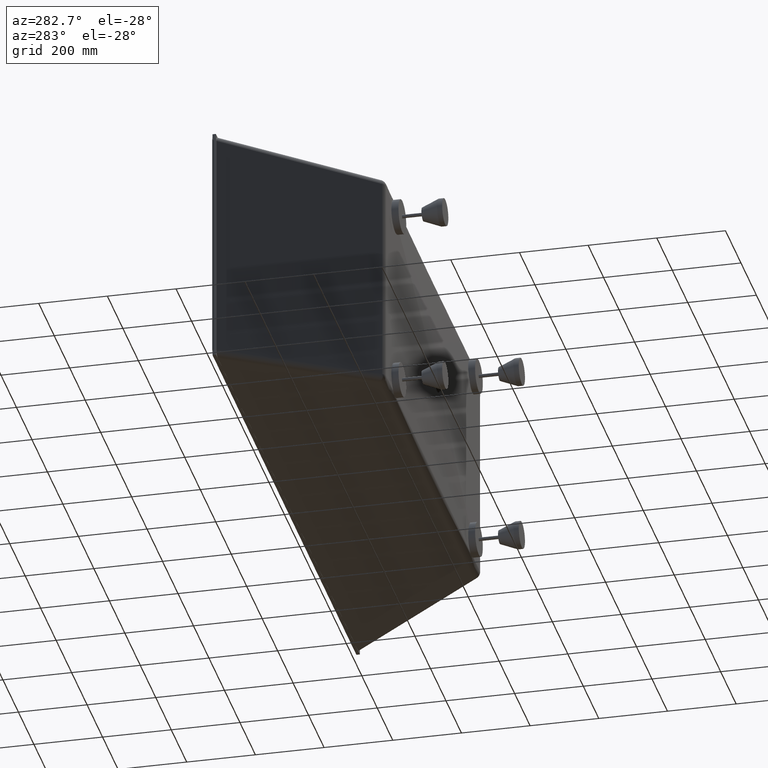
[diagram: clean part render]
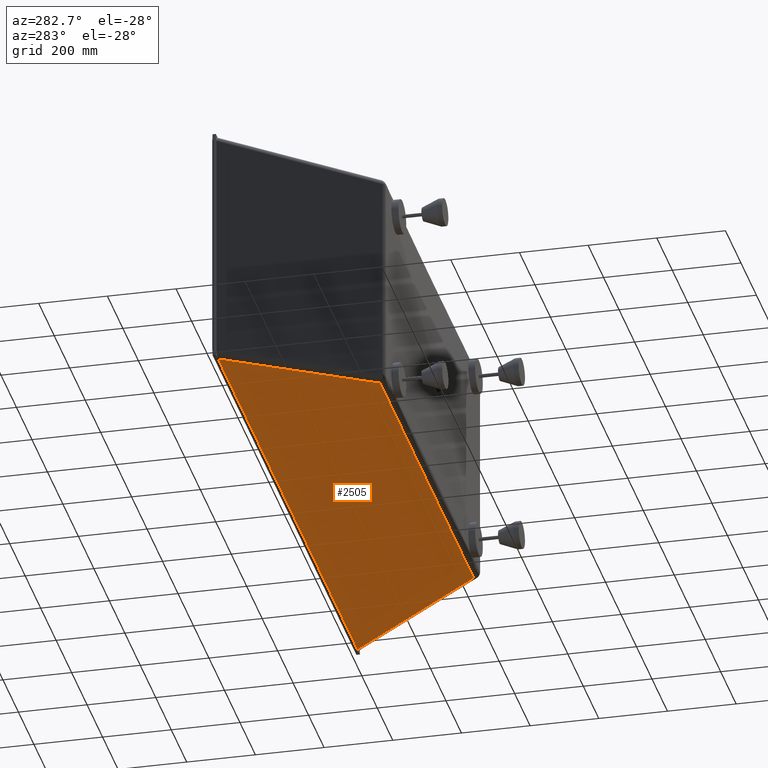
[diagram: same view with one face highlighted and labeled with its STEP entity id]
A machine part, auxiliary view. The second image highlights one B-rep face of the part: STEP entity #2505.
In plain terms, the highlighted planar face has unit normal (0, -0.0707, -0.9975).
Its self-contained STEP definition (entity closure, byte-faithful):
#103 = ORIENTED_EDGE ( 'NONE', *, *, #7503, .T. ) ;
#142 = FACE_OUTER_BOUND ( 'NONE', #1185, .T. ) ;
#272 = DIRECTION ( 'NONE',  ( -0.5901508273742236400, -0.8052703225138593300, 0.05711137039105359400 ) ) ;
#302 = B_SPLINE_CURVE_WITH_KNOTS ( 'NONE', 3,
 ( #9392, #9616, #9267, #9242 ),
 .UNSPECIFIED., .F., .F.,
 ( 4, 4 ),
 ( 0.0000000000000000000, 0.01266762318713503300 ),
 .UNSPECIFIED. ) ;
#1107 = VERTEX_POINT ( 'NONE', #7297 ) ;
#1185 = EDGE_LOOP ( 'NONE', ( #4311, #6093, #103, #4071, #5602, #6568 ) ) ;
#1510 = VERTEX_POINT ( 'NONE', #8117 ) ;
#1584 = CARTESIAN_POINT ( 'NONE',  ( 604.8551075440738000, -414.5180108610256300, -325.6266776078292100 ) ) ;
#1677 = CARTESIAN_POINT ( 'NONE',  ( 271.4263734402567300, -869.4868964284916000, -293.3593807590729100 ) ) ;
#1734 = LINE ( 'NONE', #8455, #5755 ) ;
#2075 = VECTOR ( 'NONE', #8715, 1000.000000000000000 ) ;
#2505 = ADVANCED_FACE ( 'NONE', ( #142 ), #3751, .T. ) ;
#2614 = VERTEX_POINT ( 'NONE', #1584 ) ;
#2682 = VERTEX_POINT ( 'NONE', #3574 ) ;
#3139 = B_SPLINE_CURVE_WITH_KNOTS ( 'NONE', 3,
 ( #5435, #5424, #5359, #5242 ),
 .UNSPECIFIED., .F., .F.,
 ( 4, 4 ),
 ( 0.0000000000000000000, 0.01266762318712956100 ),
 .UNSPECIFIED. ) ;
#3574 = CARTESIAN_POINT ( 'NONE',  ( -604.8551075440715300, -414.5180108610280700, -325.6266776078290900 ) ) ;
#3680 = DIRECTION ( 'NONE',  ( 1.000000000000000000, 0.0000000000000000000, 0.0000000000000000000 ) ) ;
#3688 = DIRECTION ( 'NONE',  ( 0.0000000000000000000, -0.07074428964086718100, -0.9974944839362317500 ) ) ;
#3751 = PLANE ( 'NONE',  #3900 ) ;
#3900 = AXIS2_PLACEMENT_3D ( 'NONE', #4368, #3688, #3680 ) ;
#4071 = ORIENTED_EDGE ( 'NONE', *, *, #8603, .F. ) ;
#4088 = LINE ( 'NONE', #8812, #2075 ) ;
#4292 = EDGE_CURVE ( 'NONE', #8773, #1107, #4733, .T. ) ;
#4311 = ORIENTED_EDGE ( 'NONE', *, *, #4292, .T. ) ;
#4321 = CARTESIAN_POINT ( 'NONE',  ( 908.6389925722486400, 0.0000000000000000000, -355.0251180944266600 ) ) ;
#4368 = CARTESIAN_POINT ( 'NONE',  ( -919.9999999999997700, -0.7074428964086716400, -354.9749448393622500 ) ) ;
#4657 = VERTEX_POINT ( 'NONE', #4321 ) ;
#4733 = B_SPLINE_CURVE_WITH_KNOTS ( 'NONE', 3,
 ( #6409, #7350, #6379, #6363, #6352, #6327, #6317, #6306, #6293, #6283, #6272, #6241, #6229 ),
 .UNSPECIFIED., .F., .F.,
 ( 4, 3, 3, 3, 4 ),
 ( 0.0000000000000000000, 0.2615255093745307800, 0.5921901446981101500, 0.9228547800224572400, 1.184380289396213000 ),
 .UNSPECIFIED. ) ;
#5242 = CARTESIAN_POINT ( 'NONE',  ( 592.1901443795268300, -414.7769471565295000, -325.6083133315523800 ) ) ;
#5359 = CARTESIAN_POINT ( 'NONE',  ( 596.4117991235677900, -414.6906523782346300, -325.6144335285945900 ) ) ;
#5424 = CARTESIAN_POINT ( 'NONE',  ( 600.6334535016167100, -414.6043397831928700, -325.6205549892357600 ) ) ;
#5435 = CARTESIAN_POINT ( 'NONE',  ( 604.8551075440738000, -414.5180108610256300, -325.6266776078292100 ) ) ;
#5602 = ORIENTED_EDGE ( 'NONE', *, *, #7192, .T. ) ;
#5755 = VECTOR ( 'NONE', #8223, 1000.000000000000200 ) ;
#6008 = VECTOR ( 'NONE', #272, 1000.000000000000100 ) ;
#6093 = ORIENTED_EDGE ( 'NONE', *, *, #8290, .T. ) ;
#6229 = CARTESIAN_POINT ( 'NONE',  ( -592.1901443795191000, -414.7769471565295600, -325.6083133315523800 ) ) ;
#6241 = CARTESIAN_POINT ( 'NONE',  ( -505.0149746602909900, -414.7804819152910900, -325.6080626394416400 ) ) ;
#6272 = CARTESIAN_POINT ( 'NONE',  ( -417.8398049493757200, -414.7842396394900100, -325.6077961341793000 ) ) ;
#6283 = CARTESIAN_POINT ( 'NONE',  ( -330.6646352156071800, -414.7873975005571200, -325.6075721724014900 ) ) ;
#6293 = CARTESIAN_POINT ( 'NONE',  ( -220.4430901929409000, -414.7913902008505700, -325.6072890021678700 ) ) ;
#6306 = CARTESIAN_POINT ( 'NONE',  ( -110.2215450953462700, -414.7942052646396300, -325.6070893522538700 ) ) ;
#6317 = CARTESIAN_POINT ( 'NONE',  ( 1.838806884535415500E-013, -414.7942052646394000, -325.6070893522538700 ) ) ;
#6327 = CARTESIAN_POINT ( 'NONE',  ( 110.2215450950907600, -414.7942052646391700, -325.6070893522538700 ) ) ;
#6352 = CARTESIAN_POINT ( 'NONE',  ( 220.4430901924294500, -414.7913902008506900, -325.6072890021678700 ) ) ;
#6363 = CARTESIAN_POINT ( 'NONE',  ( 330.6646352148398500, -414.7873975005572300, -325.6075721724014900 ) ) ;
#6379 = CARTESIAN_POINT ( 'NONE',  ( 417.8398049488667400, -414.7842396394901200, -325.6077961341793000 ) ) ;
#6409 = CARTESIAN_POINT ( 'NONE',  ( 592.1901443795268300, -414.7769471565295000, -325.6083133315523800 ) ) ;
#6568 = ORIENTED_EDGE ( 'NONE', *, *, #7561, .T. ) ;
#7192 = EDGE_CURVE ( 'NONE', #4657, #2614, #7947, .T. ) ;
#7297 = CARTESIAN_POINT ( 'NONE',  ( -592.1901443795191000, -414.7769471565295600, -325.6083133315523800 ) ) ;
#7350 = CARTESIAN_POINT ( 'NONE',  ( 505.0149746600404200, -414.7804819152912000, -325.6080626394416400 ) ) ;
#7503 = EDGE_CURVE ( 'NONE', #2682, #1510, #1734, .T. ) ;
#7561 = EDGE_CURVE ( 'NONE', #2614, #8773, #3139, .T. ) ;
#7947 = LINE ( 'NONE', #1677, #6008 ) ;
#8117 = CARTESIAN_POINT ( 'NONE',  ( -908.6389925722478400, 0.0000000000000000000, -355.0251180944266600 ) ) ;
#8223 = DIRECTION ( 'NONE',  ( -0.5901508273742233100, 0.8052703225138596600, -0.05711137039105360800 ) ) ;
#8245 = CARTESIAN_POINT ( 'NONE',  ( 592.1901443795268300, -414.7769471565295000, -325.6083133315523800 ) ) ;
#8290 = EDGE_CURVE ( 'NONE', #1107, #2682, #302, .T. ) ;
#8455 = CARTESIAN_POINT ( 'NONE',  ( -889.0019091758989600, -26.79511702146971400, -353.1247551851025700 ) ) ;
#8603 = EDGE_CURVE ( 'NONE', #4657, #1510, #4088, .T. ) ;
#8715 = DIRECTION ( 'NONE',  ( -1.000000000000000000, 0.0000000000000000000, 0.0000000000000000000 ) ) ;
#8773 = VERTEX_POINT ( 'NONE', #8245 ) ;
#8812 = CARTESIAN_POINT ( 'NONE',  ( -919.9999999999997700, 0.0000000000000000000, -355.0251180944267200 ) ) ;
#9242 = CARTESIAN_POINT ( 'NONE',  ( -604.8551075440715300, -414.5180108610280700, -325.6266776078290900 ) ) ;
#9267 = CARTESIAN_POINT ( 'NONE',  ( -600.6334535016126200, -414.6043397831967400, -325.6205549892355300 ) ) ;
#9392 = CARTESIAN_POINT ( 'NONE',  ( -592.1901443795191000, -414.7769471565295600, -325.6083133315523800 ) ) ;
#9616 = CARTESIAN_POINT ( 'NONE',  ( -596.4117991235617600, -414.6906523782345700, -325.6144335285945900 ) ) ;